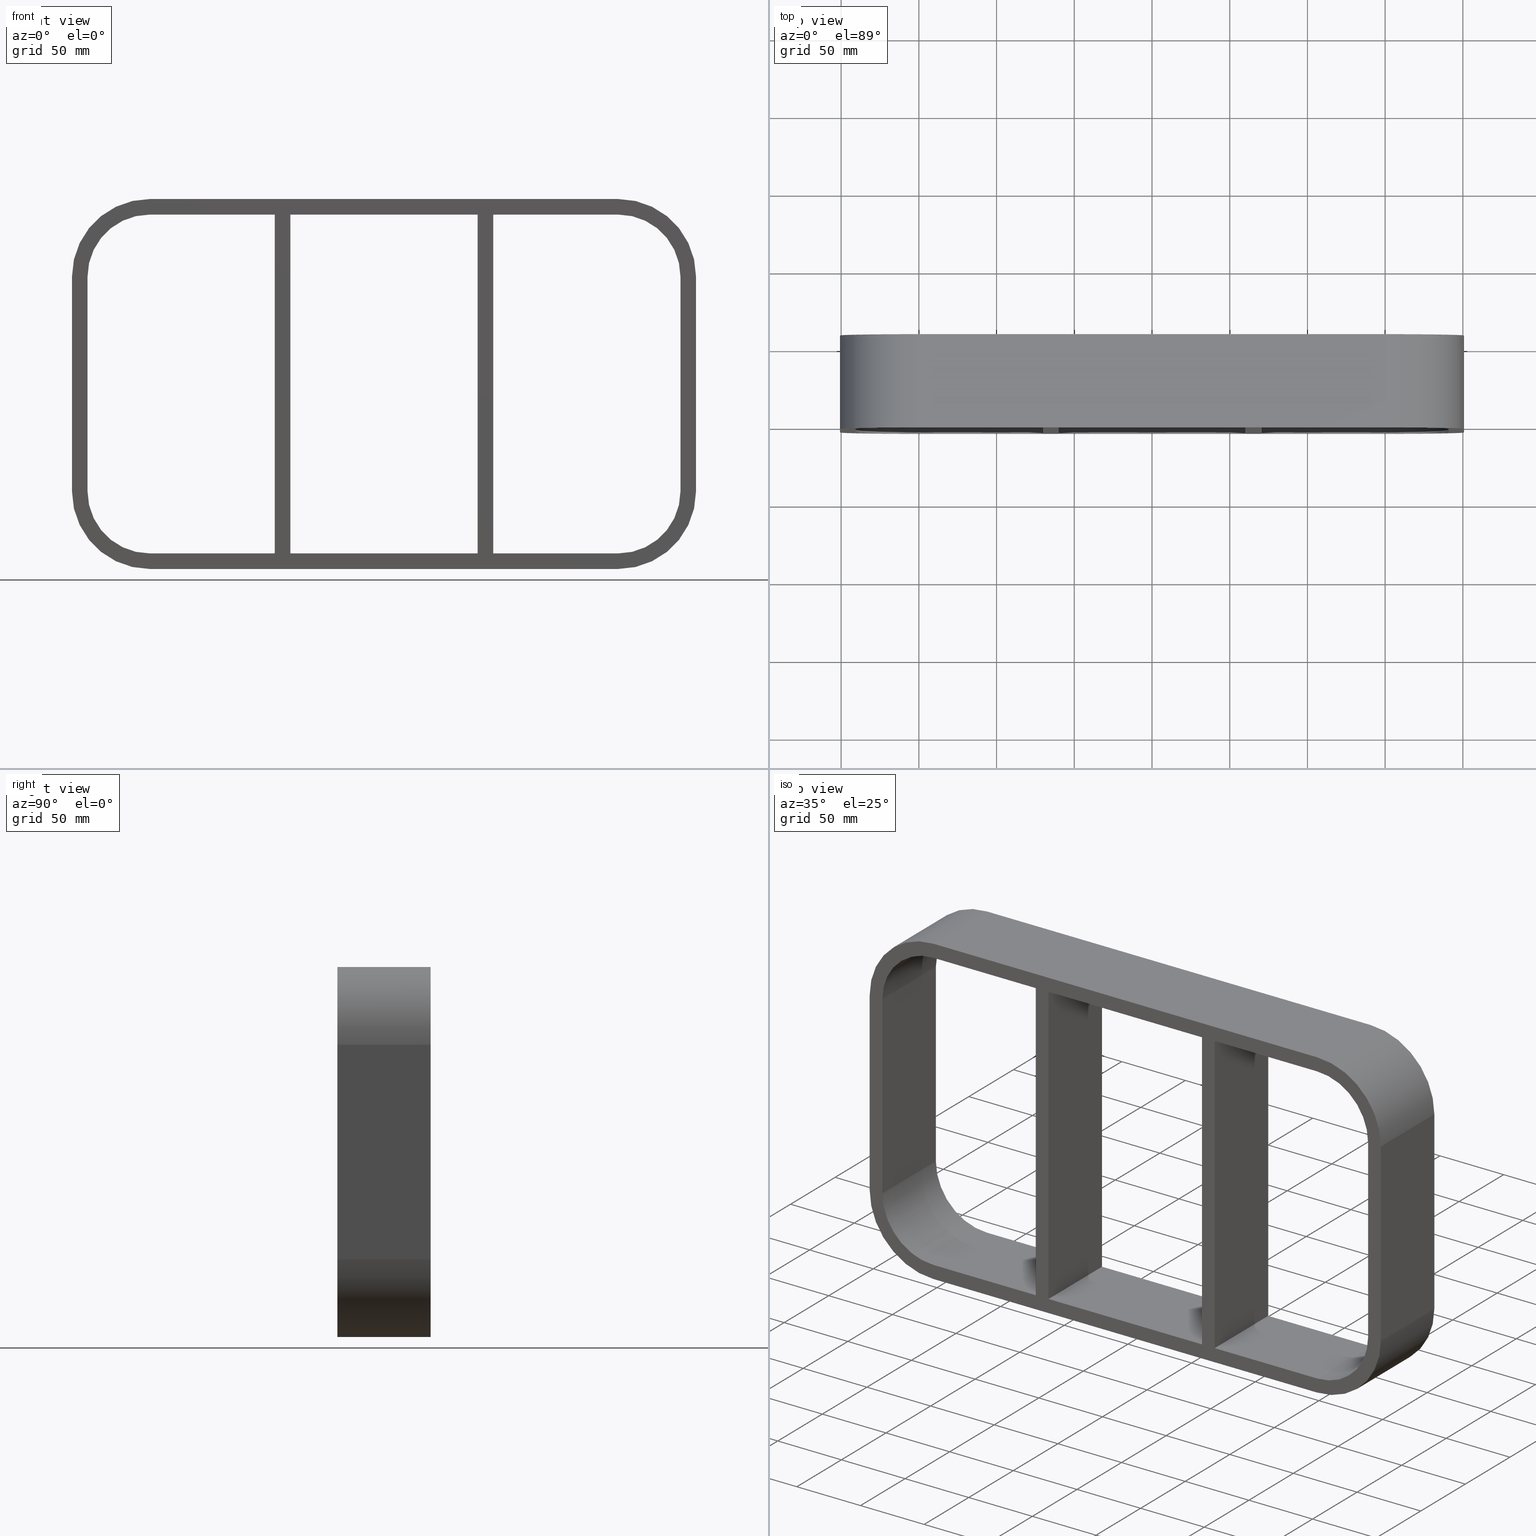
[diagram: canonical four-view strip — front | top / right | iso, engineering-drawing reading convention]
A machine part, canonical four-view strip (front | top / right | iso — engineering-drawing reading convention). The complete STEP part file that produces these views, byte-faithful:
ISO-10303-21;
HEADER;
/****************************************************************
 * Generated by software with PDElib inside                    *
 * PDElib Version v51a, created Wed 11/30/2011                  *
 * ITI Transcendata (http://www.transcendata.com/)              *
 ****************************************************************/
FILE_DESCRIPTION((''),'2;1');
FILE_NAME('N:\\Projects\\Ongoing_Projects\\12403 Transit Designer\\Product-data\\Product Data\\Transit designer Cad Generator\\CreatedFiles\\STEP\\SRCR40-6X3.stp','2014-10-31T13:07:46',(''),(''),'Autodesk Inventor 2013','Autodesk Inventor 2013','');
FILE_SCHEMA(('AUTOMOTIVE_DESIGN { 1 0 10303 214 1 1 1 1 }'));
ENDSEC;
DATA;
#5=APPLICATION_CONTEXT('automotive design');
#6=APPLICATION_PROTOCOL_DEFINITION('International Standard','automotive_design',2001,#5);
#7=PRODUCT_CONTEXT('',#5,'mechanical');
#8=PRODUCT('GH-ISO','GH-ISO',$,(#7));
#9=PRODUCT_RELATED_PRODUCT_CATEGORY('part',$,(#8));
#10=PRODUCT_DEFINITION_FORMATION('',$,#8);
#11=PRODUCT_DEFINITION_CONTEXT('part definition',#5,'design');
#12=PRODUCT_DEFINITION('',$,#10,#11);
#18=(NAMED_UNIT(*)PLANE_ANGLE_UNIT()SI_UNIT($,.RADIAN.));
#19=DIMENSIONAL_EXPONENTS(0.0,0.0,0.0,0.0,0.0,0.0,0.0);
#20=PLANE_ANGLE_MEASURE_WITH_UNIT(PLANE_ANGLE_MEASURE(0.0174532925),#18);
#24=(CONVERSION_BASED_UNIT('DEGREE',#20)NAMED_UNIT(#19)PLANE_ANGLE_UNIT());
#28=(NAMED_UNIT(*)SI_UNIT($,.STERADIAN.)SOLID_ANGLE_UNIT());
#32=(LENGTH_UNIT()NAMED_UNIT(*)SI_UNIT(.MILLI.,.METRE.));
#34=UNCERTAINTY_MEASURE_WITH_UNIT(LENGTH_MEASURE(0.01),#32,'DISTANCE_ACCURACY_VALUE','');
#36=(GEOMETRIC_REPRESENTATION_CONTEXT(3)GLOBAL_UNCERTAINTY_ASSIGNED_CONTEXT((#34))GLOBAL_UNIT_ASSIGNED_CONTEXT((#24,#28,#32))REPRESENTATION_CONTEXT('None','None'));
#37=AXIS2_PLACEMENT_3D('',#38,#39,#40);
#38=CARTESIAN_POINT('',(0.0,0.0,0.0));
#39=DIRECTION('',(0.0,0.0,1.0));
#40=DIRECTION('',(1.0,0.0,0.0));
#41=SHAPE_REPRESENTATION('',(#37),#36);
#42=PRODUCT_DEFINITION_SHAPE('','',#12);
#43=SHAPE_DEFINITION_REPRESENTATION(#42,#41);
#49=(NAMED_UNIT(*)PLANE_ANGLE_UNIT()SI_UNIT($,.RADIAN.));
#50=DIMENSIONAL_EXPONENTS(0.0,0.0,0.0,0.0,0.0,0.0,0.0);
#51=PLANE_ANGLE_MEASURE_WITH_UNIT(PLANE_ANGLE_MEASURE(0.0174532925),#49);
#55=(CONVERSION_BASED_UNIT('DEGREE',#51)NAMED_UNIT(#50)PLANE_ANGLE_UNIT());
#59=(NAMED_UNIT(*)SI_UNIT($,.STERADIAN.)SOLID_ANGLE_UNIT());
#63=(LENGTH_UNIT()NAMED_UNIT(*)SI_UNIT(.MILLI.,.METRE.));
#65=UNCERTAINTY_MEASURE_WITH_UNIT(LENGTH_MEASURE(0.000001),#63,'DISTANCE_ACCURACY_VALUE','');
#67=(GEOMETRIC_REPRESENTATION_CONTEXT(3)GLOBAL_UNCERTAINTY_ASSIGNED_CONTEXT((#65))GLOBAL_UNIT_ASSIGNED_CONTEXT((#55,#59,#63))REPRESENTATION_CONTEXT('','3D'));
#68=CARTESIAN_POINT('',(60.249999999998529,-3.0,-108.99999999999999));
#69=DIRECTION('',(-1.0,0.0,0.0));
#70=DIRECTION('',(0.0,0.0,1.0));
#71=AXIS2_PLACEMENT_3D('',#68,#69,#70);
#72=PLANE('',#71);
#73=CARTESIAN_POINT('',(60.249999999998529,-3.0,-108.99999999999999));
#74=VERTEX_POINT('',#73);
#75=CARTESIAN_POINT('',(60.249999999998494,-3.0,108.99999999999999));
#76=VERTEX_POINT('',#75);
#77=CARTESIAN_POINT('',(60.249999999998529,-3.0,-108.99999999999999));
#78=DIRECTION('',(0.0,0.0,1.0));
#79=VECTOR('',#78,217.99999999999997);
#80=LINE('',#77,#79);
#81=EDGE_CURVE('',#74,#76,#80,.T.);
#82=ORIENTED_EDGE('',*,*,#81,.T.);
#83=CARTESIAN_POINT('',(60.249999999998494,57.0,108.99999999999999));
#84=VERTEX_POINT('',#83);
#85=CARTESIAN_POINT('',(60.249999999998494,57.000000000000007,108.99999999999999));
#86=DIRECTION('',(0.0,-1.0,0.0));
#87=VECTOR('',#86,60.000000000000007);
#88=LINE('',#85,#87);
#89=EDGE_CURVE('',#84,#76,#88,.T.);
#90=ORIENTED_EDGE('',*,*,#89,.F.);
#91=CARTESIAN_POINT('',(60.249999999998529,57.0,-108.99999999999999));
#92=VERTEX_POINT('',#91);
#93=CARTESIAN_POINT('',(60.249999999998529,57.0,-108.99999999999999));
#94=DIRECTION('',(0.0,0.0,1.0));
#95=VECTOR('',#94,217.99999999999997);
#96=LINE('',#93,#95);
#97=EDGE_CURVE('',#92,#84,#96,.T.);
#98=ORIENTED_EDGE('',*,*,#97,.F.);
#99=CARTESIAN_POINT('',(60.249999999998529,-3.0,-108.99999999999999));
#100=DIRECTION('',(0.0,1.0,0.0));
#101=VECTOR('',#100,60.000000000000007);
#102=LINE('',#99,#101);
#103=EDGE_CURVE('',#74,#92,#102,.T.);
#104=ORIENTED_EDGE('',*,*,#103,.F.);
#105=EDGE_LOOP('',(#82,#90,#98,#104));
#106=FACE_OUTER_BOUND('',#105,.T.);
#107=ADVANCED_FACE('',(#106),#72,.T.);
#108=CARTESIAN_POINT('',(70.250000000003638,-3.0,108.99999999999999));
#109=DIRECTION('',(1.0,0.0,0.0));
#110=DIRECTION('',(0.0,0.0,-1.0));
#111=AXIS2_PLACEMENT_3D('',#108,#109,#110);
#112=PLANE('',#111);
#113=CARTESIAN_POINT('',(70.250000000003638,-3.0,108.99999999999999));
#114=VERTEX_POINT('',#113);
#115=CARTESIAN_POINT('',(70.250000000003638,-3.0,-108.99999999998505));
#116=VERTEX_POINT('',#115);
#117=CARTESIAN_POINT('',(70.250000000003638,-3.0,108.99999999999999));
#118=DIRECTION('',(0.0,0.0,-1.0));
#119=VECTOR('',#118,217.99999999998505);
#120=LINE('',#117,#119);
#121=EDGE_CURVE('',#114,#116,#120,.T.);
#122=ORIENTED_EDGE('',*,*,#121,.T.);
#123=CARTESIAN_POINT('',(70.250000000003638,57.0,-108.99999999998506));
#124=VERTEX_POINT('',#123);
#125=CARTESIAN_POINT('',(70.250000000003638,57.000000000000007,-108.99999999999999));
#126=DIRECTION('',(0.0,-1.0,0.0));
#127=VECTOR('',#126,60.000000000000007);
#128=LINE('',#125,#127);
#129=EDGE_CURVE('',#124,#116,#128,.T.);
#130=ORIENTED_EDGE('',*,*,#129,.F.);
#131=CARTESIAN_POINT('',(70.250000000003638,57.0,108.99999999999999));
#132=VERTEX_POINT('',#131);
#133=CARTESIAN_POINT('',(70.250000000003638,57.0,108.99999999999999));
#134=DIRECTION('',(0.0,0.0,-1.0));
#135=VECTOR('',#134,217.99999999998505);
#136=LINE('',#133,#135);
#137=EDGE_CURVE('',#132,#124,#136,.T.);
#138=ORIENTED_EDGE('',*,*,#137,.F.);
#139=CARTESIAN_POINT('',(70.250000000003638,-3.0,108.99999999999999));
#140=DIRECTION('',(0.0,1.0,0.0));
#141=VECTOR('',#140,60.000000000000007);
#142=LINE('',#139,#141);
#143=EDGE_CURVE('',#114,#132,#142,.T.);
#144=ORIENTED_EDGE('',*,*,#143,.F.);
#145=EDGE_LOOP('',(#122,#130,#138,#144));
#146=FACE_OUTER_BOUND('',#145,.T.);
#147=ADVANCED_FACE('',(#146),#112,.T.);
#148=CARTESIAN_POINT('',(190.75000000000006,0.0,-108.99999999999999));
#149=DIRECTION('',(0.0,0.0,-1.0));
#150=DIRECTION('',(-1.0,0.0,0.0));
#151=AXIS2_PLACEMENT_3D('',#148,#149,#150);
#152=PLANE('',#151);
#153=ORIENTED_EDGE('',*,*,#103,.T.);
#154=CARTESIAN_POINT('',(-60.249999999996362,57.0,-108.99999999998506));
#155=VERTEX_POINT('',#154);
#156=CARTESIAN_POINT('',(-60.249999999996362,57.0,-108.99999999999999));
#157=DIRECTION('',(1.0,0.0,0.0));
#158=VECTOR('',#157,120.49999999999488);
#159=LINE('',#156,#158);
#160=EDGE_CURVE('',#155,#92,#159,.T.);
#161=ORIENTED_EDGE('',*,*,#160,.F.);
#162=CARTESIAN_POINT('',(-60.249999999996362,-3.0,-108.99999999998505));
#163=VERTEX_POINT('',#162);
#164=CARTESIAN_POINT('',(-60.249999999996362,57.000000000000007,-108.99999999999999));
#165=DIRECTION('',(0.0,-1.0,0.0));
#166=VECTOR('',#165,60.000000000000007);
#167=LINE('',#164,#166);
#168=EDGE_CURVE('',#155,#163,#167,.T.);
#169=ORIENTED_EDGE('',*,*,#168,.T.);
#170=CARTESIAN_POINT('',(60.249999999998522,-3.0,-108.99999999999999));
#171=DIRECTION('',(-1.0,0.0,0.0));
#172=VECTOR('',#171,120.49999999999488);
#173=LINE('',#170,#172);
#174=EDGE_CURVE('',#74,#163,#173,.T.);
#175=ORIENTED_EDGE('',*,*,#174,.F.);
#176=EDGE_LOOP('',(#153,#161,#169,#175));
#177=FACE_OUTER_BOUND('',#176,.T.);
#178=ADVANCED_FACE('',(#177),#152,.F.);
#179=CARTESIAN_POINT('',(190.75000000000006,0.0,-108.99999999999999));
#180=DIRECTION('',(0.0,0.0,-1.0));
#181=DIRECTION('',(-1.0,0.0,0.0));
#182=AXIS2_PLACEMENT_3D('',#179,#180,#181);
#183=PLANE('',#182);
#184=ORIENTED_EDGE('',*,*,#129,.T.);
#185=CARTESIAN_POINT('',(150.75000000000006,-3.0,-108.99999999999999));
#186=VERTEX_POINT('',#185);
#187=CARTESIAN_POINT('',(150.75000000000006,-3.0,-108.99999999999999));
#188=DIRECTION('',(-1.0,0.0,0.0));
#189=VECTOR('',#188,80.499999999996419);
#190=LINE('',#187,#189);
#191=EDGE_CURVE('',#186,#116,#190,.T.);
#192=ORIENTED_EDGE('',*,*,#191,.F.);
#193=CARTESIAN_POINT('',(150.75000000000006,57.0,-108.99999999999999));
#194=VERTEX_POINT('',#193);
#195=CARTESIAN_POINT('',(150.75000000000006,57.0,-108.99999999999999));
#196=DIRECTION('',(0.0,-1.0,0.0));
#197=VECTOR('',#196,60.0);
#198=LINE('',#195,#197);
#199=EDGE_CURVE('',#194,#186,#198,.T.);
#200=ORIENTED_EDGE('',*,*,#199,.F.);
#201=CARTESIAN_POINT('',(70.250000000003638,57.0,-108.99999999999999));
#202=DIRECTION('',(1.0,0.0,0.0));
#203=VECTOR('',#202,80.499999999996419);
#204=LINE('',#201,#203);
#205=EDGE_CURVE('',#124,#194,#204,.T.);
#206=ORIENTED_EDGE('',*,*,#205,.F.);
#207=EDGE_LOOP('',(#184,#192,#200,#206));
#208=FACE_OUTER_BOUND('',#207,.T.);
#209=ADVANCED_FACE('',(#208),#183,.F.);
#210=CARTESIAN_POINT('',(-190.75000000000003,0.0,108.99999999999999));
#211=DIRECTION('',(0.0,0.0,1.0));
#212=DIRECTION('',(1.0,0.0,0.0));
#213=AXIS2_PLACEMENT_3D('',#210,#211,#212);
#214=PLANE('',#213);
#215=ORIENTED_EDGE('',*,*,#143,.T.);
#216=CARTESIAN_POINT('',(150.75000000000003,57.0,108.99999999999999));
#217=VERTEX_POINT('',#216);
#218=CARTESIAN_POINT('',(150.75000000000006,57.0,108.99999999999999));
#219=DIRECTION('',(-1.0,0.0,0.0));
#220=VECTOR('',#219,80.499999999996405);
#221=LINE('',#218,#220);
#222=EDGE_CURVE('',#217,#132,#221,.T.);
#223=ORIENTED_EDGE('',*,*,#222,.F.);
#224=CARTESIAN_POINT('',(150.75000000000003,-3.0,108.99999999999999));
#225=VERTEX_POINT('',#224);
#226=CARTESIAN_POINT('',(150.75000000000006,-3.0,108.99999999999999));
#227=DIRECTION('',(0.0,1.0,0.0));
#228=VECTOR('',#227,60.0);
#229=LINE('',#226,#228);
#230=EDGE_CURVE('',#225,#217,#229,.T.);
#231=ORIENTED_EDGE('',*,*,#230,.F.);
#232=CARTESIAN_POINT('',(70.250000000003652,-3.0,108.99999999999999));
#233=DIRECTION('',(1.0,0.0,0.0));
#234=VECTOR('',#233,80.499999999996405);
#235=LINE('',#232,#234);
#236=EDGE_CURVE('',#114,#225,#235,.T.);
#237=ORIENTED_EDGE('',*,*,#236,.F.);
#238=EDGE_LOOP('',(#215,#223,#231,#237));
#239=FACE_OUTER_BOUND('',#238,.T.);
#240=ADVANCED_FACE('',(#239),#214,.F.);
#241=CARTESIAN_POINT('',(-190.75000000000003,0.0,108.99999999999999));
#242=DIRECTION('',(0.0,0.0,1.0));
#243=DIRECTION('',(1.0,0.0,0.0));
#244=AXIS2_PLACEMENT_3D('',#241,#242,#243);
#245=PLANE('',#244);
#246=ORIENTED_EDGE('',*,*,#89,.T.);
#247=CARTESIAN_POINT('',(-60.249999999996362,-3.0,108.99999999999999));
#248=VERTEX_POINT('',#247);
#249=CARTESIAN_POINT('',(-60.249999999996362,-3.0,108.99999999999999));
#250=DIRECTION('',(1.0,0.0,0.0));
#251=VECTOR('',#250,120.49999999999487);
#252=LINE('',#249,#251);
#253=EDGE_CURVE('',#248,#76,#252,.T.);
#254=ORIENTED_EDGE('',*,*,#253,.F.);
#255=CARTESIAN_POINT('',(-60.249999999996362,57.0,108.99999999999999));
#256=VERTEX_POINT('',#255);
#257=CARTESIAN_POINT('',(-60.249999999996362,-3.0,108.99999999999999));
#258=DIRECTION('',(0.0,1.0,0.0));
#259=VECTOR('',#258,60.000000000000007);
#260=LINE('',#257,#259);
#261=EDGE_CURVE('',#248,#256,#260,.T.);
#262=ORIENTED_EDGE('',*,*,#261,.T.);
#263=CARTESIAN_POINT('',(60.249999999998508,57.0,108.99999999999999));
#264=DIRECTION('',(-1.0,0.0,0.0));
#265=VECTOR('',#264,120.49999999999487);
#266=LINE('',#263,#265);
#267=EDGE_CURVE('',#84,#256,#266,.T.);
#268=ORIENTED_EDGE('',*,*,#267,.F.);
#269=EDGE_LOOP('',(#246,#254,#262,#268));
#270=FACE_OUTER_BOUND('',#269,.T.);
#271=ADVANCED_FACE('',(#270),#245,.F.);
#272=CARTESIAN_POINT('',(-70.250000000001478,-3.0,-108.99999999999999));
#273=DIRECTION('',(-1.0,0.0,0.0));
#274=DIRECTION('',(0.0,0.0,1.0));
#275=AXIS2_PLACEMENT_3D('',#272,#273,#274);
#276=PLANE('',#275);
#277=CARTESIAN_POINT('',(-70.250000000001478,-3.0,-108.99999999999999));
#278=VERTEX_POINT('',#277);
#279=CARTESIAN_POINT('',(-70.250000000001506,-3.0,108.99999999999999));
#280=VERTEX_POINT('',#279);
#281=CARTESIAN_POINT('',(-70.250000000001478,-3.0,-108.99999999999999));
#282=DIRECTION('',(0.0,0.0,1.0));
#283=VECTOR('',#282,217.99999999999997);
#284=LINE('',#281,#283);
#285=EDGE_CURVE('',#278,#280,#284,.T.);
#286=ORIENTED_EDGE('',*,*,#285,.T.);
#287=CARTESIAN_POINT('',(-70.250000000001506,57.0,108.99999999999999));
#288=VERTEX_POINT('',#287);
#289=CARTESIAN_POINT('',(-70.250000000001506,57.000000000000007,108.99999999999999));
#290=DIRECTION('',(0.0,-1.0,0.0));
#291=VECTOR('',#290,60.000000000000007);
#292=LINE('',#289,#291);
#293=EDGE_CURVE('',#288,#280,#292,.T.);
#294=ORIENTED_EDGE('',*,*,#293,.F.);
#295=CARTESIAN_POINT('',(-70.250000000001478,57.0,-108.99999999999999));
#296=VERTEX_POINT('',#295);
#297=CARTESIAN_POINT('',(-70.250000000001478,57.0,-108.99999999999999));
#298=DIRECTION('',(0.0,0.0,1.0));
#299=VECTOR('',#298,217.99999999999997);
#300=LINE('',#297,#299);
#301=EDGE_CURVE('',#296,#288,#300,.T.);
#302=ORIENTED_EDGE('',*,*,#301,.F.);
#303=CARTESIAN_POINT('',(-70.250000000001478,-3.0,-108.99999999999999));
#304=DIRECTION('',(0.0,1.0,0.0));
#305=VECTOR('',#304,60.000000000000007);
#306=LINE('',#303,#305);
#307=EDGE_CURVE('',#278,#296,#306,.T.);
#308=ORIENTED_EDGE('',*,*,#307,.F.);
#309=EDGE_LOOP('',(#286,#294,#302,#308));
#310=FACE_OUTER_BOUND('',#309,.T.);
#311=ADVANCED_FACE('',(#310),#276,.T.);
#312=CARTESIAN_POINT('',(-60.249999999996362,-3.0,108.99999999999999));
#313=DIRECTION('',(1.0,0.0,0.0));
#314=DIRECTION('',(0.0,0.0,-1.0));
#315=AXIS2_PLACEMENT_3D('',#312,#313,#314);
#316=PLANE('',#315);
#317=CARTESIAN_POINT('',(-60.249999999996362,-3.0,108.99999999999999));
#318=DIRECTION('',(0.0,0.0,-1.0));
#319=VECTOR('',#318,217.99999999998505);
#320=LINE('',#317,#319);
#321=EDGE_CURVE('',#248,#163,#320,.T.);
#322=ORIENTED_EDGE('',*,*,#321,.T.);
#323=ORIENTED_EDGE('',*,*,#168,.F.);
#324=CARTESIAN_POINT('',(-60.249999999996362,57.0,108.99999999999999));
#325=DIRECTION('',(0.0,0.0,-1.0));
#326=VECTOR('',#325,217.99999999998505);
#327=LINE('',#324,#326);
#328=EDGE_CURVE('',#256,#155,#327,.T.);
#329=ORIENTED_EDGE('',*,*,#328,.F.);
#330=ORIENTED_EDGE('',*,*,#261,.F.);
#331=EDGE_LOOP('',(#322,#323,#329,#330));
#332=FACE_OUTER_BOUND('',#331,.T.);
#333=ADVANCED_FACE('',(#332),#316,.T.);
#334=CARTESIAN_POINT('',(190.75000000000006,0.0,-108.99999999999999));
#335=DIRECTION('',(0.0,0.0,-1.0));
#336=DIRECTION('',(-1.0,0.0,0.0));
#337=AXIS2_PLACEMENT_3D('',#334,#335,#336);
#338=PLANE('',#337);
#339=ORIENTED_EDGE('',*,*,#307,.T.);
#340=CARTESIAN_POINT('',(-150.75,57.0,-108.99999999999999));
#341=VERTEX_POINT('',#340);
#342=CARTESIAN_POINT('',(-150.75000000000003,57.0,-108.99999999999999));
#343=DIRECTION('',(1.0,0.0,0.0));
#344=VECTOR('',#343,80.499999999998579);
#345=LINE('',#342,#344);
#346=EDGE_CURVE('',#341,#296,#345,.T.);
#347=ORIENTED_EDGE('',*,*,#346,.F.);
#348=CARTESIAN_POINT('',(-150.75,-3.0,-108.99999999999999));
#349=VERTEX_POINT('',#348);
#350=CARTESIAN_POINT('',(-150.75,-3.0,-108.99999999999999));
#351=DIRECTION('',(0.0,1.0,0.0));
#352=VECTOR('',#351,60.0);
#353=LINE('',#350,#352);
#354=EDGE_CURVE('',#349,#341,#353,.T.);
#355=ORIENTED_EDGE('',*,*,#354,.F.);
#356=CARTESIAN_POINT('',(-70.25000000000145,-3.0,-108.99999999999999));
#357=DIRECTION('',(-1.0,0.0,0.0));
#358=VECTOR('',#357,80.499999999998579);
#359=LINE('',#356,#358);
#360=EDGE_CURVE('',#278,#349,#359,.T.);
#361=ORIENTED_EDGE('',*,*,#360,.F.);
#362=EDGE_LOOP('',(#339,#347,#355,#361));
#363=FACE_OUTER_BOUND('',#362,.T.);
#364=ADVANCED_FACE('',(#363),#338,.F.);
#365=CARTESIAN_POINT('',(-190.75000000000003,0.0,108.99999999999999));
#366=DIRECTION('',(0.0,0.0,1.0));
#367=DIRECTION('',(1.0,0.0,0.0));
#368=AXIS2_PLACEMENT_3D('',#365,#366,#367);
#369=PLANE('',#368);
#370=ORIENTED_EDGE('',*,*,#293,.T.);
#371=CARTESIAN_POINT('',(-150.75000000000003,-3.0,108.99999999999999));
#372=VERTEX_POINT('',#371);
#373=CARTESIAN_POINT('',(-150.75000000000003,-3.0,108.99999999999999));
#374=DIRECTION('',(1.0,0.0,0.0));
#375=VECTOR('',#374,80.499999999998522);
#376=LINE('',#373,#375);
#377=EDGE_CURVE('',#372,#280,#376,.T.);
#378=ORIENTED_EDGE('',*,*,#377,.F.);
#379=CARTESIAN_POINT('',(-150.75000000000003,57.0,108.99999999999999));
#380=VERTEX_POINT('',#379);
#381=CARTESIAN_POINT('',(-150.75000000000003,57.0,108.99999999999999));
#382=DIRECTION('',(0.0,-1.0,0.0));
#383=VECTOR('',#382,60.0);
#384=LINE('',#381,#383);
#385=EDGE_CURVE('',#380,#372,#384,.T.);
#386=ORIENTED_EDGE('',*,*,#385,.F.);
#387=CARTESIAN_POINT('',(-70.250000000001506,57.0,108.99999999999999));
#388=DIRECTION('',(-1.0,0.0,0.0));
#389=VECTOR('',#388,80.499999999998522);
#390=LINE('',#387,#389);
#391=EDGE_CURVE('',#288,#380,#390,.T.);
#392=ORIENTED_EDGE('',*,*,#391,.F.);
#393=EDGE_LOOP('',(#370,#378,#386,#392));
#394=FACE_OUTER_BOUND('',#393,.T.);
#395=ADVANCED_FACE('',(#394),#369,.F.);
#396=CARTESIAN_POINT('',(150.75000000000003,0.0,-68.999999999999986));
#397=DIRECTION('',(0.0,1.0,0.0));
#398=DIRECTION('',(0.707106781186547,0.0,-0.707106781186547));
#399=AXIS2_PLACEMENT_3D('',#396,#397,#398);
#400=CYLINDRICAL_SURFACE('',#399,49.999999999999993);
#401=CARTESIAN_POINT('',(150.75000000000003,57.0,-118.99999999999999));
#402=VERTEX_POINT('',#401);
#403=CARTESIAN_POINT('',(200.75000000000003,57.0,-68.999999999999986));
#404=VERTEX_POINT('',#403);
#405=CARTESIAN_POINT('',(150.75000000000003,57.0,-68.999999999999986));
#406=DIRECTION('',(0.0,-1.0,0.0));
#407=DIRECTION('',(0.707106781186547,0.0,-0.707106781186547));
#408=AXIS2_PLACEMENT_3D('',#405,#406,#407);
#409=CIRCLE('',#408,49.999999999999986);
#410=EDGE_CURVE('',#402,#404,#409,.T.);
#411=ORIENTED_EDGE('',*,*,#410,.T.);
#412=CARTESIAN_POINT('',(200.75000000000003,-3.0,-68.999999999999986));
#413=VERTEX_POINT('',#412);
#414=CARTESIAN_POINT('',(200.75000000000003,57.0,-68.999999999999986));
#415=DIRECTION('',(0.0,-1.0,0.0));
#416=VECTOR('',#415,60.0);
#417=LINE('',#414,#416);
#418=EDGE_CURVE('',#404,#413,#417,.T.);
#419=ORIENTED_EDGE('',*,*,#418,.T.);
#420=CARTESIAN_POINT('',(150.75000000000003,-3.0,-118.99999999999999));
#421=VERTEX_POINT('',#420);
#422=CARTESIAN_POINT('',(150.75000000000003,-3.0,-68.999999999999986));
#423=DIRECTION('',(0.0,1.0,0.0));
#424=DIRECTION('',(0.707106781186547,0.0,-0.707106781186547));
#425=AXIS2_PLACEMENT_3D('',#422,#423,#424);
#426=CIRCLE('',#425,49.999999999999986);
#427=EDGE_CURVE('',#413,#421,#426,.T.);
#428=ORIENTED_EDGE('',*,*,#427,.T.);
#429=CARTESIAN_POINT('',(150.75000000000003,-3.0,-118.99999999999999));
#430=DIRECTION('',(0.0,1.0,0.0));
#431=VECTOR('',#430,60.0);
#432=LINE('',#429,#431);
#433=EDGE_CURVE('',#421,#402,#432,.T.);
#434=ORIENTED_EDGE('',*,*,#433,.T.);
#435=EDGE_LOOP('',(#411,#419,#428,#434));
#436=FACE_OUTER_BOUND('',#435,.T.);
#437=ADVANCED_FACE('',(#436),#400,.T.);
#438=CARTESIAN_POINT('',(0.0,-3.0,0.0));
#439=DIRECTION('',(0.0,1.0,0.0));
#440=DIRECTION('',(0.0,0.0,1.0));
#441=AXIS2_PLACEMENT_3D('',#438,#439,#440);
#442=PLANE('',#441);
#443=ORIENTED_EDGE('',*,*,#427,.F.);
#444=CARTESIAN_POINT('',(200.75000000000003,-3.0,68.999999999999986));
#445=VERTEX_POINT('',#444);
#446=CARTESIAN_POINT('',(200.75000000000003,-3.0,-68.999999999999986));
#447=DIRECTION('',(0.0,0.0,1.0));
#448=VECTOR('',#447,137.99999999999997);
#449=LINE('',#446,#448);
#450=EDGE_CURVE('',#413,#445,#449,.T.);
#451=ORIENTED_EDGE('',*,*,#450,.T.);
#452=CARTESIAN_POINT('',(150.75000000000003,-3.0,118.99999999999999));
#453=VERTEX_POINT('',#452);
#454=CARTESIAN_POINT('',(150.75000000000003,-3.0,68.999999999999986));
#455=DIRECTION('',(0.0,1.0,0.0));
#456=DIRECTION('',(0.707106781186547,0.0,0.707106781186547));
#457=AXIS2_PLACEMENT_3D('',#454,#455,#456);
#458=CIRCLE('',#457,49.999999999999986);
#459=EDGE_CURVE('',#453,#445,#458,.T.);
#460=ORIENTED_EDGE('',*,*,#459,.F.);
#461=CARTESIAN_POINT('',(-150.75000000000003,-3.0,118.99999999999999));
#462=VERTEX_POINT('',#461);
#463=CARTESIAN_POINT('',(150.75000000000003,-3.0,118.99999999999999));
#464=DIRECTION('',(-1.0,0.0,0.0));
#465=VECTOR('',#464,301.50000000000006);
#466=LINE('',#463,#465);
#467=EDGE_CURVE('',#453,#462,#466,.T.);
#468=ORIENTED_EDGE('',*,*,#467,.T.);
#469=CARTESIAN_POINT('',(-200.75000000000003,-3.0,68.999999999999986));
#470=VERTEX_POINT('',#469);
#471=CARTESIAN_POINT('',(-150.75000000000003,-3.0,68.999999999999986));
#472=DIRECTION('',(0.0,1.0,0.0));
#473=DIRECTION('',(-0.707106781186547,0.0,0.707106781186547));
#474=AXIS2_PLACEMENT_3D('',#471,#472,#473);
#475=CIRCLE('',#474,49.999999999999986);
#476=EDGE_CURVE('',#470,#462,#475,.T.);
#477=ORIENTED_EDGE('',*,*,#476,.F.);
#478=CARTESIAN_POINT('',(-200.75000000000003,-3.0,-68.999999999999986));
#479=VERTEX_POINT('',#478);
#480=CARTESIAN_POINT('',(-200.75000000000003,-3.0,68.999999999999986));
#481=DIRECTION('',(0.0,0.0,-1.0));
#482=VECTOR('',#481,137.99999999999997);
#483=LINE('',#480,#482);
#484=EDGE_CURVE('',#470,#479,#483,.T.);
#485=ORIENTED_EDGE('',*,*,#484,.T.);
#486=CARTESIAN_POINT('',(-150.75000000000003,-3.0,-118.99999999999999));
#487=VERTEX_POINT('',#486);
#488=CARTESIAN_POINT('',(-150.75000000000003,-3.0,-68.999999999999986));
#489=DIRECTION('',(0.0,1.0,0.0));
#490=DIRECTION('',(-0.707106781186547,0.0,-0.707106781186547));
#491=AXIS2_PLACEMENT_3D('',#488,#489,#490);
#492=CIRCLE('',#491,49.999999999999986);
#493=EDGE_CURVE('',#487,#479,#492,.T.);
#494=ORIENTED_EDGE('',*,*,#493,.F.);
#495=CARTESIAN_POINT('',(-150.75000000000003,-3.0,-118.99999999999999));
#496=DIRECTION('',(1.0,0.0,0.0));
#497=VECTOR('',#496,301.50000000000006);
#498=LINE('',#495,#497);
#499=EDGE_CURVE('',#487,#421,#498,.T.);
#500=ORIENTED_EDGE('',*,*,#499,.T.);
#501=EDGE_LOOP('',(#443,#451,#460,#468,#477,#485,#494,#500));
#502=FACE_OUTER_BOUND('',#501,.T.);
#503=ORIENTED_EDGE('',*,*,#174,.T.);
#504=ORIENTED_EDGE('',*,*,#321,.F.);
#505=ORIENTED_EDGE('',*,*,#253,.T.);
#506=ORIENTED_EDGE('',*,*,#81,.F.);
#507=EDGE_LOOP('',(#503,#504,#505,#506));
#508=FACE_BOUND('',#507,.T.);
#509=ORIENTED_EDGE('',*,*,#360,.T.);
#510=CARTESIAN_POINT('',(-190.75000000000003,-3.0,-68.999999999999986));
#511=VERTEX_POINT('',#510);
#512=CARTESIAN_POINT('',(-150.75,-3.0,-68.999999999999986));
#513=DIRECTION('',(0.0,-1.0,0.0));
#514=DIRECTION('',(-0.707106781186548,0.0,-0.707106781186547));
#515=AXIS2_PLACEMENT_3D('',#512,#513,#514);
#516=CIRCLE('',#515,40.0);
#517=EDGE_CURVE('',#511,#349,#516,.T.);
#518=ORIENTED_EDGE('',*,*,#517,.F.);
#519=CARTESIAN_POINT('',(-190.75000000000003,-3.0,68.999999999999986));
#520=VERTEX_POINT('',#519);
#521=CARTESIAN_POINT('',(-190.75000000000003,-3.0,-68.999999999999986));
#522=DIRECTION('',(0.0,0.0,1.0));
#523=VECTOR('',#522,137.99999999999994);
#524=LINE('',#521,#523);
#525=EDGE_CURVE('',#511,#520,#524,.T.);
#526=ORIENTED_EDGE('',*,*,#525,.T.);
#527=CARTESIAN_POINT('',(-150.75000000000003,-3.0,68.999999999999986));
#528=DIRECTION('',(0.0,-1.0,0.0));
#529=DIRECTION('',(-0.707106781186547,0.0,0.707106781186547));
#530=AXIS2_PLACEMENT_3D('',#527,#528,#529);
#531=CIRCLE('',#530,39.999999999999993);
#532=EDGE_CURVE('',#372,#520,#531,.T.);
#533=ORIENTED_EDGE('',*,*,#532,.F.);
#534=ORIENTED_EDGE('',*,*,#377,.T.);
#535=ORIENTED_EDGE('',*,*,#285,.F.);
#536=EDGE_LOOP('',(#509,#518,#526,#533,#534,#535));
#537=FACE_BOUND('',#536,.T.);
#538=ORIENTED_EDGE('',*,*,#121,.F.);
#539=ORIENTED_EDGE('',*,*,#236,.T.);
#540=CARTESIAN_POINT('',(190.75000000000006,-3.0,68.999999999999986));
#541=VERTEX_POINT('',#540);
#542=CARTESIAN_POINT('',(150.75000000000006,-3.0,68.999999999999986));
#543=DIRECTION('',(0.0,-1.0,0.0));
#544=DIRECTION('',(0.707106781186548,0.0,0.707106781186547));
#545=AXIS2_PLACEMENT_3D('',#542,#543,#544);
#546=CIRCLE('',#545,40.0);
#547=EDGE_CURVE('',#541,#225,#546,.T.);
#548=ORIENTED_EDGE('',*,*,#547,.F.);
#549=CARTESIAN_POINT('',(190.75000000000006,-3.0,-68.999999999999986));
#550=VERTEX_POINT('',#549);
#551=CARTESIAN_POINT('',(190.75000000000006,-3.0,68.999999999999986));
#552=DIRECTION('',(0.0,0.0,-1.0));
#553=VECTOR('',#552,137.99999999999994);
#554=LINE('',#551,#553);
#555=EDGE_CURVE('',#541,#550,#554,.T.);
#556=ORIENTED_EDGE('',*,*,#555,.T.);
#557=CARTESIAN_POINT('',(150.75000000000006,-3.0,-68.999999999999986));
#558=DIRECTION('',(0.0,-1.0,0.0));
#559=DIRECTION('',(0.707106781186547,0.0,-0.707106781186547));
#560=AXIS2_PLACEMENT_3D('',#557,#558,#559);
#561=CIRCLE('',#560,39.999999999999993);
#562=EDGE_CURVE('',#186,#550,#561,.T.);
#563=ORIENTED_EDGE('',*,*,#562,.F.);
#564=ORIENTED_EDGE('',*,*,#191,.T.);
#565=EDGE_LOOP('',(#538,#539,#548,#556,#563,#564));
#566=FACE_BOUND('',#565,.T.);
#567=ADVANCED_FACE('',(#502,#508,#537,#566),#442,.F.);
#568=CARTESIAN_POINT('',(200.75000000000003,0.0,118.99999999999999));
#569=DIRECTION('',(1.0,0.0,0.0));
#570=DIRECTION('',(0.0,0.0,-1.0));
#571=AXIS2_PLACEMENT_3D('',#568,#569,#570);
#572=PLANE('',#571);
#573=ORIENTED_EDGE('',*,*,#418,.F.);
#574=CARTESIAN_POINT('',(200.75000000000003,57.0,68.999999999999986));
#575=VERTEX_POINT('',#574);
#576=CARTESIAN_POINT('',(200.75000000000003,57.0,68.999999999999986));
#577=DIRECTION('',(0.0,0.0,-1.0));
#578=VECTOR('',#577,137.99999999999997);
#579=LINE('',#576,#578);
#580=EDGE_CURVE('',#575,#404,#579,.T.);
#581=ORIENTED_EDGE('',*,*,#580,.F.);
#582=CARTESIAN_POINT('',(200.75000000000003,-3.0,68.999999999999986));
#583=DIRECTION('',(0.0,1.0,0.0));
#584=VECTOR('',#583,60.0);
#585=LINE('',#582,#584);
#586=EDGE_CURVE('',#445,#575,#585,.T.);
#587=ORIENTED_EDGE('',*,*,#586,.F.);
#588=ORIENTED_EDGE('',*,*,#450,.F.);
#589=EDGE_LOOP('',(#573,#581,#587,#588));
#590=FACE_OUTER_BOUND('',#589,.T.);
#591=ADVANCED_FACE('',(#590),#572,.T.);
#592=CARTESIAN_POINT('',(150.75000000000003,0.0,68.999999999999986));
#593=DIRECTION('',(0.0,-1.0,0.0));
#594=DIRECTION('',(0.707106781186547,0.0,0.707106781186547));
#595=AXIS2_PLACEMENT_3D('',#592,#593,#594);
#596=CYLINDRICAL_SURFACE('',#595,49.999999999999993);
#597=ORIENTED_EDGE('',*,*,#459,.T.);
#598=ORIENTED_EDGE('',*,*,#586,.T.);
#599=CARTESIAN_POINT('',(150.75000000000003,57.0,118.99999999999999));
#600=VERTEX_POINT('',#599);
#601=CARTESIAN_POINT('',(150.75000000000003,57.0,68.999999999999986));
#602=DIRECTION('',(0.0,-1.0,0.0));
#603=DIRECTION('',(0.707106781186547,0.0,0.707106781186547));
#604=AXIS2_PLACEMENT_3D('',#601,#602,#603);
#605=CIRCLE('',#604,49.999999999999986);
#606=EDGE_CURVE('',#575,#600,#605,.T.);
#607=ORIENTED_EDGE('',*,*,#606,.T.);
#608=CARTESIAN_POINT('',(150.75000000000003,57.0,118.99999999999999));
#609=DIRECTION('',(0.0,-1.0,0.0));
#610=VECTOR('',#609,60.0);
#611=LINE('',#608,#610);
#612=EDGE_CURVE('',#600,#453,#611,.T.);
#613=ORIENTED_EDGE('',*,*,#612,.T.);
#614=EDGE_LOOP('',(#597,#598,#607,#613));
#615=FACE_OUTER_BOUND('',#614,.T.);
#616=ADVANCED_FACE('',(#615),#596,.T.);
#617=CARTESIAN_POINT('',(-150.75000000000003,0.0,-68.999999999999986));
#618=DIRECTION('',(0.0,1.0,0.0));
#619=DIRECTION('',(-0.707106781186547,0.0,-0.707106781186547));
#620=AXIS2_PLACEMENT_3D('',#617,#618,#619);
#621=CYLINDRICAL_SURFACE('',#620,49.999999999999993);
#622=CARTESIAN_POINT('',(-200.75000000000003,57.0,-68.999999999999986));
#623=VERTEX_POINT('',#622);
#624=CARTESIAN_POINT('',(-150.75000000000003,57.0,-118.99999999999999));
#625=VERTEX_POINT('',#624);
#626=CARTESIAN_POINT('',(-150.75000000000003,57.0,-68.999999999999986));
#627=DIRECTION('',(0.0,-1.0,0.0));
#628=DIRECTION('',(-0.707106781186547,0.0,-0.707106781186547));
#629=AXIS2_PLACEMENT_3D('',#626,#627,#628);
#630=CIRCLE('',#629,49.999999999999986);
#631=EDGE_CURVE('',#623,#625,#630,.T.);
#632=ORIENTED_EDGE('',*,*,#631,.T.);
#633=CARTESIAN_POINT('',(-150.75000000000003,57.0,-118.99999999999999));
#634=DIRECTION('',(0.0,-1.0,0.0));
#635=VECTOR('',#634,60.0);
#636=LINE('',#633,#635);
#637=EDGE_CURVE('',#625,#487,#636,.T.);
#638=ORIENTED_EDGE('',*,*,#637,.T.);
#639=ORIENTED_EDGE('',*,*,#493,.T.);
#640=CARTESIAN_POINT('',(-200.75000000000003,-3.0,-68.999999999999986));
#641=DIRECTION('',(0.0,1.0,0.0));
#642=VECTOR('',#641,60.0);
#643=LINE('',#640,#642);
#644=EDGE_CURVE('',#479,#623,#643,.T.);
#645=ORIENTED_EDGE('',*,*,#644,.T.);
#646=EDGE_LOOP('',(#632,#638,#639,#645));
#647=FACE_OUTER_BOUND('',#646,.T.);
#648=ADVANCED_FACE('',(#647),#621,.T.);
#649=CARTESIAN_POINT('',(-200.75000000000003,0.0,-118.99999999999999));
#650=DIRECTION('',(-1.0,0.0,0.0));
#651=DIRECTION('',(0.0,0.0,1.0));
#652=AXIS2_PLACEMENT_3D('',#649,#650,#651);
#653=PLANE('',#652);
#654=ORIENTED_EDGE('',*,*,#644,.F.);
#655=ORIENTED_EDGE('',*,*,#484,.F.);
#656=CARTESIAN_POINT('',(-200.75000000000003,57.0,68.999999999999986));
#657=VERTEX_POINT('',#656);
#658=CARTESIAN_POINT('',(-200.75000000000003,57.0,68.999999999999986));
#659=DIRECTION('',(0.0,-1.0,0.0));
#660=VECTOR('',#659,60.0);
#661=LINE('',#658,#660);
#662=EDGE_CURVE('',#657,#470,#661,.T.);
#663=ORIENTED_EDGE('',*,*,#662,.F.);
#664=CARTESIAN_POINT('',(-200.75000000000003,57.0,-68.999999999999986));
#665=DIRECTION('',(0.0,0.0,1.0));
#666=VECTOR('',#665,137.99999999999997);
#667=LINE('',#664,#666);
#668=EDGE_CURVE('',#623,#657,#667,.T.);
#669=ORIENTED_EDGE('',*,*,#668,.F.);
#670=EDGE_LOOP('',(#654,#655,#663,#669));
#671=FACE_OUTER_BOUND('',#670,.T.);
#672=ADVANCED_FACE('',(#671),#653,.T.);
#673=CARTESIAN_POINT('',(-150.75000000000003,0.0,68.999999999999986));
#674=DIRECTION('',(0.0,1.0,0.0));
#675=DIRECTION('',(-0.707106781186547,0.0,0.707106781186547));
#676=AXIS2_PLACEMENT_3D('',#673,#674,#675);
#677=CYLINDRICAL_SURFACE('',#676,49.999999999999993);
#678=CARTESIAN_POINT('',(-150.75000000000003,57.0,118.99999999999999));
#679=VERTEX_POINT('',#678);
#680=CARTESIAN_POINT('',(-150.75000000000003,57.0,68.999999999999986));
#681=DIRECTION('',(0.0,-1.0,0.0));
#682=DIRECTION('',(-0.707106781186547,0.0,0.707106781186547));
#683=AXIS2_PLACEMENT_3D('',#680,#681,#682);
#684=CIRCLE('',#683,49.999999999999986);
#685=EDGE_CURVE('',#679,#657,#684,.T.);
#686=ORIENTED_EDGE('',*,*,#685,.T.);
#687=ORIENTED_EDGE('',*,*,#662,.T.);
#688=ORIENTED_EDGE('',*,*,#476,.T.);
#689=CARTESIAN_POINT('',(-150.75000000000003,-3.0,118.99999999999999));
#690=DIRECTION('',(0.0,1.0,0.0));
#691=VECTOR('',#690,60.0);
#692=LINE('',#689,#691);
#693=EDGE_CURVE('',#462,#679,#692,.T.);
#694=ORIENTED_EDGE('',*,*,#693,.T.);
#695=EDGE_LOOP('',(#686,#687,#688,#694));
#696=FACE_OUTER_BOUND('',#695,.T.);
#697=ADVANCED_FACE('',(#696),#677,.T.);
#698=CARTESIAN_POINT('',(-200.75000000000003,0.0,118.99999999999999));
#699=DIRECTION('',(0.0,0.0,1.0));
#700=DIRECTION('',(1.0,0.0,0.0));
#701=AXIS2_PLACEMENT_3D('',#698,#699,#700);
#702=PLANE('',#701);
#703=ORIENTED_EDGE('',*,*,#612,.F.);
#704=CARTESIAN_POINT('',(-150.75000000000003,57.0,118.99999999999999));
#705=DIRECTION('',(1.0,0.0,0.0));
#706=VECTOR('',#705,301.50000000000006);
#707=LINE('',#704,#706);
#708=EDGE_CURVE('',#679,#600,#707,.T.);
#709=ORIENTED_EDGE('',*,*,#708,.F.);
#710=ORIENTED_EDGE('',*,*,#693,.F.);
#711=ORIENTED_EDGE('',*,*,#467,.F.);
#712=EDGE_LOOP('',(#703,#709,#710,#711));
#713=FACE_OUTER_BOUND('',#712,.T.);
#714=ADVANCED_FACE('',(#713),#702,.T.);
#715=CARTESIAN_POINT('',(-150.75000000000003,0.0,68.999999999999986));
#716=DIRECTION('',(0.0,1.0,0.0));
#717=DIRECTION('',(-0.707106781186547,0.0,0.707106781186547));
#718=AXIS2_PLACEMENT_3D('',#715,#716,#717);
#719=CYLINDRICAL_SURFACE('',#718,40.0);
#720=ORIENTED_EDGE('',*,*,#532,.T.);
#721=CARTESIAN_POINT('',(-190.75000000000003,57.0,68.999999999999986));
#722=VERTEX_POINT('',#721);
#723=CARTESIAN_POINT('',(-190.75000000000003,-3.0,68.999999999999986));
#724=DIRECTION('',(0.0,1.0,0.0));
#725=VECTOR('',#724,60.0);
#726=LINE('',#723,#725);
#727=EDGE_CURVE('',#520,#722,#726,.T.);
#728=ORIENTED_EDGE('',*,*,#727,.T.);
#729=CARTESIAN_POINT('',(-150.75000000000003,57.0,68.999999999999986));
#730=DIRECTION('',(0.0,1.0,0.0));
#731=DIRECTION('',(-0.707106781186547,0.0,0.707106781186547));
#732=AXIS2_PLACEMENT_3D('',#729,#730,#731);
#733=CIRCLE('',#732,39.999999999999993);
#734=EDGE_CURVE('',#722,#380,#733,.T.);
#735=ORIENTED_EDGE('',*,*,#734,.T.);
#736=ORIENTED_EDGE('',*,*,#385,.T.);
#737=EDGE_LOOP('',(#720,#728,#735,#736));
#738=FACE_OUTER_BOUND('',#737,.T.);
#739=ADVANCED_FACE('',(#738),#719,.F.);
#740=CARTESIAN_POINT('',(-190.75000000000003,0.0,-108.99999999999999));
#741=DIRECTION('',(-1.0,0.0,0.0));
#742=DIRECTION('',(0.0,0.0,1.0));
#743=AXIS2_PLACEMENT_3D('',#740,#741,#742);
#744=PLANE('',#743);
#745=ORIENTED_EDGE('',*,*,#727,.F.);
#746=ORIENTED_EDGE('',*,*,#525,.F.);
#747=CARTESIAN_POINT('',(-190.75000000000003,57.0,-68.999999999999986));
#748=VERTEX_POINT('',#747);
#749=CARTESIAN_POINT('',(-190.75000000000003,57.0,-68.999999999999986));
#750=DIRECTION('',(0.0,-1.0,0.0));
#751=VECTOR('',#750,60.0);
#752=LINE('',#749,#751);
#753=EDGE_CURVE('',#748,#511,#752,.T.);
#754=ORIENTED_EDGE('',*,*,#753,.F.);
#755=CARTESIAN_POINT('',(-190.75000000000003,57.0,68.999999999999972));
#756=DIRECTION('',(0.0,0.0,-1.0));
#757=VECTOR('',#756,137.99999999999994);
#758=LINE('',#755,#757);
#759=EDGE_CURVE('',#722,#748,#758,.T.);
#760=ORIENTED_EDGE('',*,*,#759,.F.);
#761=EDGE_LOOP('',(#745,#746,#754,#760));
#762=FACE_OUTER_BOUND('',#761,.T.);
#763=ADVANCED_FACE('',(#762),#744,.F.);
#764=CARTESIAN_POINT('',(150.75000000000006,0.0,68.999999999999986));
#765=DIRECTION('',(0.0,1.0,0.0));
#766=DIRECTION('',(0.707106781186548,0.0,0.707106781186547));
#767=AXIS2_PLACEMENT_3D('',#764,#765,#766);
#768=CYLINDRICAL_SURFACE('',#767,40.0);
#769=ORIENTED_EDGE('',*,*,#547,.T.);
#770=ORIENTED_EDGE('',*,*,#230,.T.);
#771=CARTESIAN_POINT('',(190.75000000000006,57.0,68.999999999999986));
#772=VERTEX_POINT('',#771);
#773=CARTESIAN_POINT('',(150.75000000000006,57.0,68.999999999999986));
#774=DIRECTION('',(0.0,1.0,0.0));
#775=DIRECTION('',(0.707106781186548,0.0,0.707106781186547));
#776=AXIS2_PLACEMENT_3D('',#773,#774,#775);
#777=CIRCLE('',#776,40.0);
#778=EDGE_CURVE('',#217,#772,#777,.T.);
#779=ORIENTED_EDGE('',*,*,#778,.T.);
#780=CARTESIAN_POINT('',(190.75000000000006,57.0,68.999999999999986));
#781=DIRECTION('',(0.0,-1.0,0.0));
#782=VECTOR('',#781,60.0);
#783=LINE('',#780,#782);
#784=EDGE_CURVE('',#772,#541,#783,.T.);
#785=ORIENTED_EDGE('',*,*,#784,.T.);
#786=EDGE_LOOP('',(#769,#770,#779,#785));
#787=FACE_OUTER_BOUND('',#786,.T.);
#788=ADVANCED_FACE('',(#787),#768,.F.);
#789=CARTESIAN_POINT('',(-150.75,0.0,-68.999999999999986));
#790=DIRECTION('',(0.0,1.0,0.0));
#791=DIRECTION('',(-0.707106781186548,0.0,-0.707106781186547));
#792=AXIS2_PLACEMENT_3D('',#789,#790,#791);
#793=CYLINDRICAL_SURFACE('',#792,40.0);
#794=ORIENTED_EDGE('',*,*,#517,.T.);
#795=ORIENTED_EDGE('',*,*,#354,.T.);
#796=CARTESIAN_POINT('',(-150.75,57.0,-68.999999999999986));
#797=DIRECTION('',(0.0,1.0,0.0));
#798=DIRECTION('',(-0.707106781186548,0.0,-0.707106781186547));
#799=AXIS2_PLACEMENT_3D('',#796,#797,#798);
#800=CIRCLE('',#799,40.0);
#801=EDGE_CURVE('',#341,#748,#800,.T.);
#802=ORIENTED_EDGE('',*,*,#801,.T.);
#803=ORIENTED_EDGE('',*,*,#753,.T.);
#804=EDGE_LOOP('',(#794,#795,#802,#803));
#805=FACE_OUTER_BOUND('',#804,.T.);
#806=ADVANCED_FACE('',(#805),#793,.F.);
#807=CARTESIAN_POINT('',(150.75000000000006,0.0,-68.999999999999986));
#808=DIRECTION('',(0.0,-1.0,0.0));
#809=DIRECTION('',(0.707106781186547,0.0,-0.707106781186547));
#810=AXIS2_PLACEMENT_3D('',#807,#808,#809);
#811=CYLINDRICAL_SURFACE('',#810,40.0);
#812=CARTESIAN_POINT('',(190.75000000000006,57.0,-68.999999999999986));
#813=VERTEX_POINT('',#812);
#814=CARTESIAN_POINT('',(150.75000000000006,57.0,-68.999999999999986));
#815=DIRECTION('',(0.0,1.0,0.0));
#816=DIRECTION('',(0.707106781186547,0.0,-0.707106781186547));
#817=AXIS2_PLACEMENT_3D('',#814,#815,#816);
#818=CIRCLE('',#817,39.999999999999993);
#819=EDGE_CURVE('',#813,#194,#818,.T.);
#820=ORIENTED_EDGE('',*,*,#819,.T.);
#821=ORIENTED_EDGE('',*,*,#199,.T.);
#822=ORIENTED_EDGE('',*,*,#562,.T.);
#823=CARTESIAN_POINT('',(190.75000000000006,-3.0,-68.999999999999986));
#824=DIRECTION('',(0.0,1.0,0.0));
#825=VECTOR('',#824,60.0);
#826=LINE('',#823,#825);
#827=EDGE_CURVE('',#550,#813,#826,.T.);
#828=ORIENTED_EDGE('',*,*,#827,.T.);
#829=EDGE_LOOP('',(#820,#821,#822,#828));
#830=FACE_OUTER_BOUND('',#829,.T.);
#831=ADVANCED_FACE('',(#830),#811,.F.);
#832=CARTESIAN_POINT('',(190.75000000000006,0.0,108.99999999999999));
#833=DIRECTION('',(1.0,0.0,0.0));
#834=DIRECTION('',(0.0,0.0,-1.0));
#835=AXIS2_PLACEMENT_3D('',#832,#833,#834);
#836=PLANE('',#835);
#837=ORIENTED_EDGE('',*,*,#784,.F.);
#838=CARTESIAN_POINT('',(190.75000000000006,57.0,-68.999999999999972));
#839=DIRECTION('',(0.0,0.0,1.0));
#840=VECTOR('',#839,137.99999999999994);
#841=LINE('',#838,#840);
#842=EDGE_CURVE('',#813,#772,#841,.T.);
#843=ORIENTED_EDGE('',*,*,#842,.F.);
#844=ORIENTED_EDGE('',*,*,#827,.F.);
#845=ORIENTED_EDGE('',*,*,#555,.F.);
#846=EDGE_LOOP('',(#837,#843,#844,#845));
#847=FACE_OUTER_BOUND('',#846,.T.);
#848=ADVANCED_FACE('',(#847),#836,.F.);
#849=CARTESIAN_POINT('',(200.75000000000003,0.0,-118.99999999999999));
#850=DIRECTION('',(0.0,0.0,-1.0));
#851=DIRECTION('',(-1.0,0.0,0.0));
#852=AXIS2_PLACEMENT_3D('',#849,#850,#851);
#853=PLANE('',#852);
#854=ORIENTED_EDGE('',*,*,#433,.F.);
#855=ORIENTED_EDGE('',*,*,#499,.F.);
#856=ORIENTED_EDGE('',*,*,#637,.F.);
#857=CARTESIAN_POINT('',(150.75000000000003,57.0,-118.99999999999999));
#858=DIRECTION('',(-1.0,0.0,0.0));
#859=VECTOR('',#858,301.50000000000006);
#860=LINE('',#857,#859);
#861=EDGE_CURVE('',#402,#625,#860,.T.);
#862=ORIENTED_EDGE('',*,*,#861,.F.);
#863=EDGE_LOOP('',(#854,#855,#856,#862));
#864=FACE_OUTER_BOUND('',#863,.T.);
#865=ADVANCED_FACE('',(#864),#853,.T.);
#866=CARTESIAN_POINT('',(0.0,57.0,0.0));
#867=DIRECTION('',(0.0,1.0,0.0));
#868=DIRECTION('',(0.0,0.0,1.0));
#869=AXIS2_PLACEMENT_3D('',#866,#867,#868);
#870=PLANE('',#869);
#871=ORIENTED_EDGE('',*,*,#410,.F.);
#872=ORIENTED_EDGE('',*,*,#861,.T.);
#873=ORIENTED_EDGE('',*,*,#631,.F.);
#874=ORIENTED_EDGE('',*,*,#668,.T.);
#875=ORIENTED_EDGE('',*,*,#685,.F.);
#876=ORIENTED_EDGE('',*,*,#708,.T.);
#877=ORIENTED_EDGE('',*,*,#606,.F.);
#878=ORIENTED_EDGE('',*,*,#580,.T.);
#879=EDGE_LOOP('',(#871,#872,#873,#874,#875,#876,#877,#878));
#880=FACE_OUTER_BOUND('',#879,.T.);
#881=ORIENTED_EDGE('',*,*,#205,.T.);
#882=ORIENTED_EDGE('',*,*,#819,.F.);
#883=ORIENTED_EDGE('',*,*,#842,.T.);
#884=ORIENTED_EDGE('',*,*,#778,.F.);
#885=ORIENTED_EDGE('',*,*,#222,.T.);
#886=ORIENTED_EDGE('',*,*,#137,.T.);
#887=EDGE_LOOP('',(#881,#882,#883,#884,#885,#886));
#888=FACE_BOUND('',#887,.T.);
#889=ORIENTED_EDGE('',*,*,#97,.T.);
#890=ORIENTED_EDGE('',*,*,#267,.T.);
#891=ORIENTED_EDGE('',*,*,#328,.T.);
#892=ORIENTED_EDGE('',*,*,#160,.T.);
#893=EDGE_LOOP('',(#889,#890,#891,#892));
#894=FACE_BOUND('',#893,.T.);
#895=ORIENTED_EDGE('',*,*,#301,.T.);
#896=ORIENTED_EDGE('',*,*,#391,.T.);
#897=ORIENTED_EDGE('',*,*,#734,.F.);
#898=ORIENTED_EDGE('',*,*,#759,.T.);
#899=ORIENTED_EDGE('',*,*,#801,.F.);
#900=ORIENTED_EDGE('',*,*,#346,.T.);
#901=EDGE_LOOP('',(#895,#896,#897,#898,#899,#900));
#902=FACE_BOUND('',#901,.T.);
#903=ADVANCED_FACE('',(#880,#888,#894,#902),#870,.T.);
#904=CLOSED_SHELL('',(#107,#147,#178,#209,#240,#271,#311,#333,#364,#395,#437,#567,#591,#616,#648,#672,#697,#714,#739,#763,#788,#806,#831,#848,#865,#903));
#905=MANIFOLD_SOLID_BREP('Solid1',#904);
#906=COLOUR_RGB('Silicon Nitride - Polished',0.800000011920929,0.796078443527222,0.701960802078247);
#907=FILL_AREA_STYLE_COLOUR('Silicon Nitride - Polished',#906);
#908=FILL_AREA_STYLE('Silicon Nitride - Polished',(#907));
#909=SURFACE_STYLE_FILL_AREA(#908);
#910=SURFACE_SIDE_STYLE('Silicon Nitride - Polished',(#909));
#911=SURFACE_STYLE_USAGE(.BOTH.,#910);
#912=PRESENTATION_STYLE_ASSIGNMENT((#911));
#913=STYLED_ITEM('',(#912),#905);
#914=MECHANICAL_DESIGN_GEOMETRIC_PRESENTATION_REPRESENTATION('',(#913),#36);
#915=ADVANCED_BREP_SHAPE_REPRESENTATION('ABSR',(#905),#36);
#916=SHAPE_REPRESENTATION_RELATIONSHIP('SRR','None',#915,#41);
ENDSEC;
END-ISO-10303-21;
